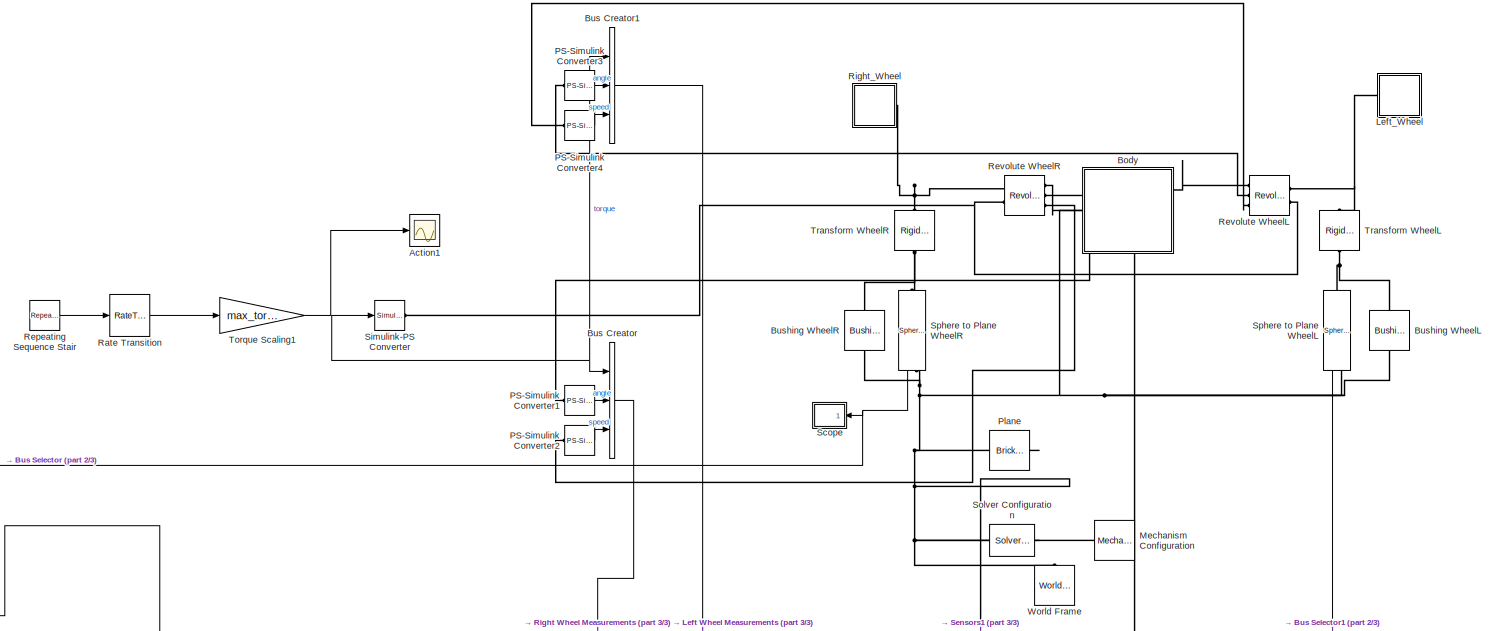
[diagram: root canvas - part 1/3, full width, middle band]
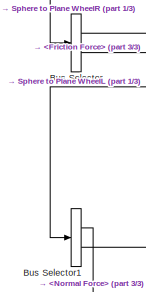
[diagram: root canvas - part 2/3, bottom left region]
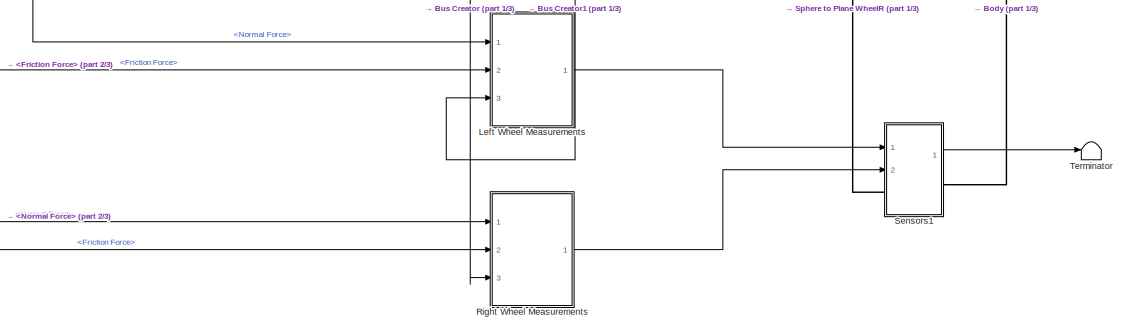
[diagram: root canvas - part 3/3, bottom center region]
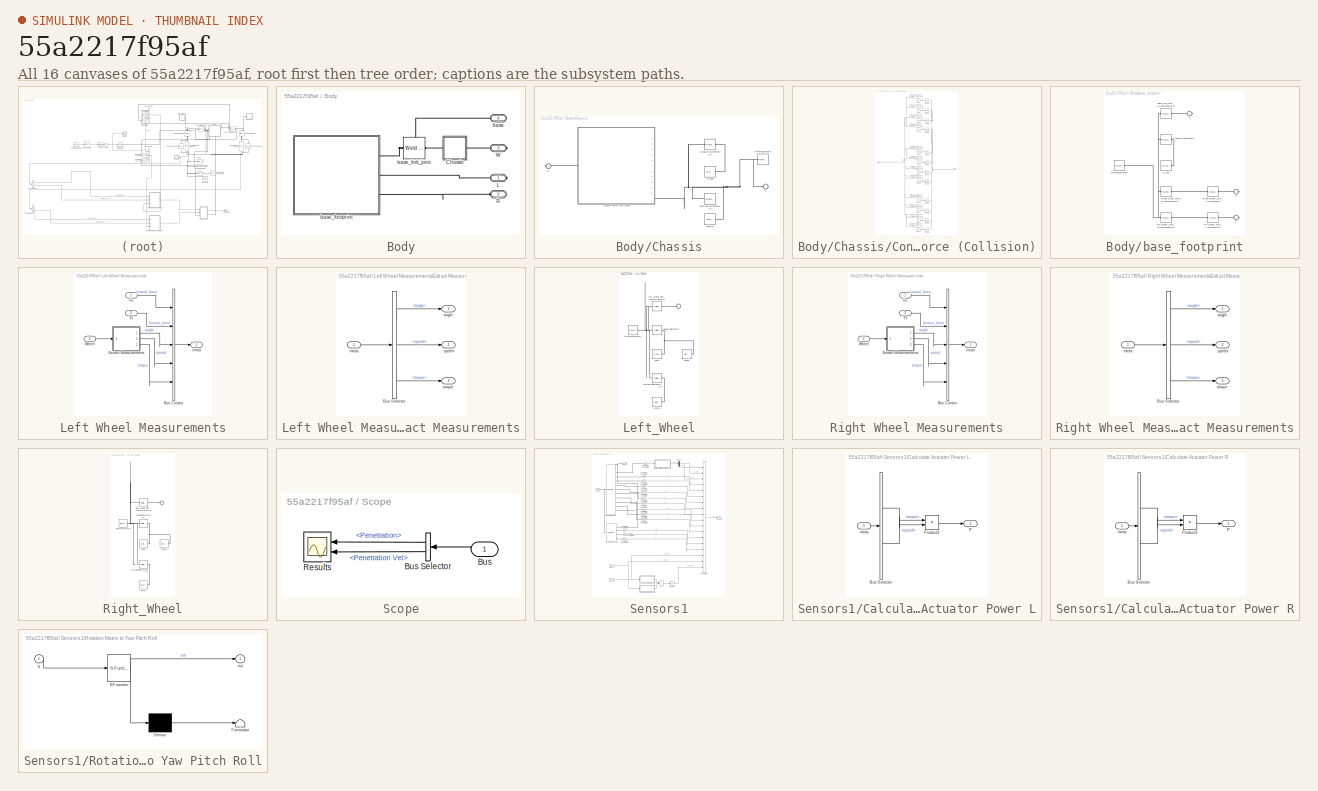
[diagram: thumbnail index - all 16 canvases of the model, root first then tree order]
MODEL slx_55a2217f95af
KIND model
CONFIG AbsTol = auto
CONFIG EnableMultiTasking = off
CONFIG FixedStep = auto
CONFIG MaxStep = auto
CONFIG MinStep = auto
CONFIG RelTol = 1e-3
CONFIG SampleTimeConstraint = Unconstrained
CONFIG Solver = VariableStepAuto
CONFIG SolverName = VariableStepAuto
CONFIG StartTime = 0.0
CONFIG StopTime = 25
BLOCK [Scope] Action1
  Floating = off
  NumInputPorts = 1
  Ports = [1]
  ScopeSpecificationString = Simulink.scopes.TimeScopeBlockCfg('CurrentConfiguration', extmgr.ConfigurationSet(extmgr.Configuration('Core','General UI',true),extmgr.Configuration('Core','Source UI',true),extmgr.Configuration('Sources','WiredSimulink',true,'DataLoggingVariableName','ScopeData1'),extmgr.Configuration('Visuals','Time Domain',true,'SerializedDisplays',{struct('MinYLimReal','-1.00000','MaxYLimReal','1.00000','YLab...<+1420ch>
BLOCK [SubSystem] Body
  PortSchema = {"entries":[{"content":{"sides":[{"content":{"connectorIds":["LConn1"]},"type":"ConnectorPlacement.EquallySpacedRectSide","uuid":"fa89fc61-4746-4874-a10e-0f1ff4eac7ad"},{"content":{"connectorIds":["RConn1"],"side":"RIGHT"},"type":"ConnectorPlacement.EquallySpacedRectSide","uuid":"79f4ddb8-3849-4594-b888-ec6795b585fc"},{"content":{"connectorIds":[],"side":"TOP"},"type":"ConnectorPlacement.EquallySp...<+408ch>
  Ports = [0, 0, 0, 0, 0, 1, 3]
  RequestExecContextInheritance = off
  Tag = CustomStyle
BLOCK [SubSystem] Body/Chassis
  Ports = [0, 0, 0, 0, 0, 1, 1]
  RequestExecContextInheritance = off
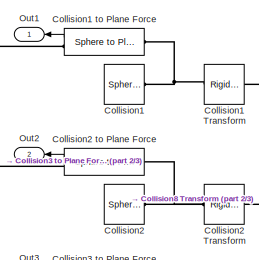
[diagram: Body/Chassis/Contact Force (Collision) - part 1/3, top center region]
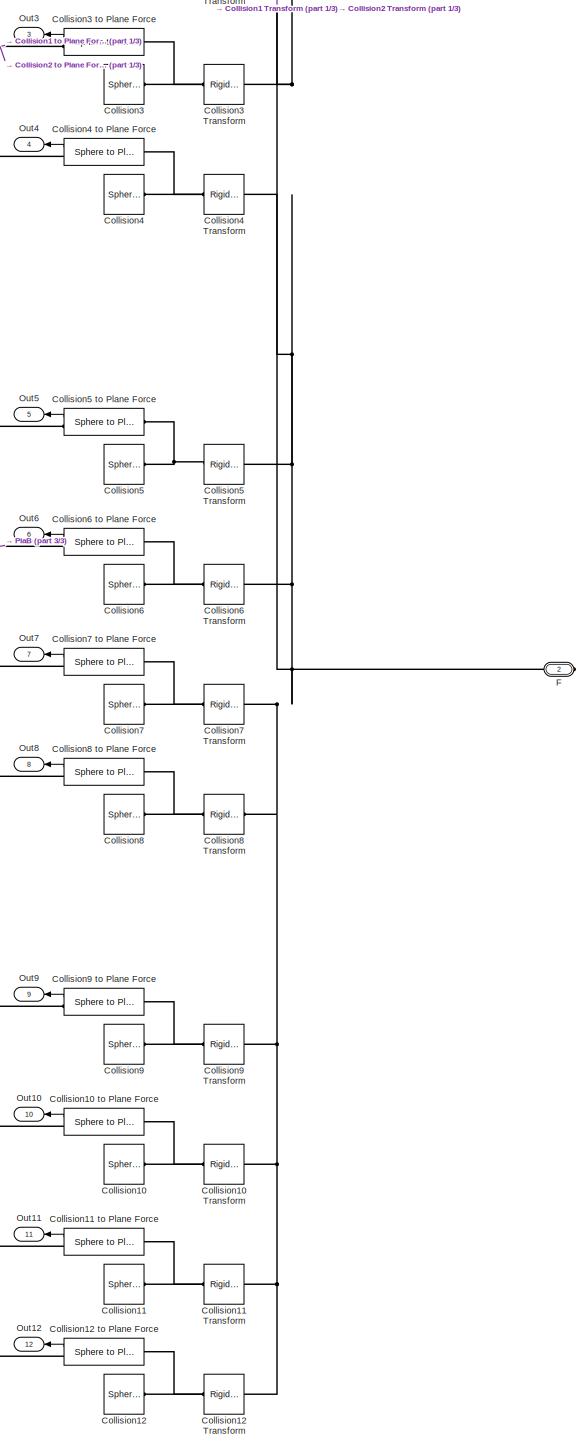
[diagram: Body/Chassis/Contact Force (Collision) - part 2/3, right side, full height]
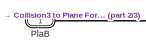
[diagram: Body/Chassis/Contact Force (Collision) - part 3/3, middle left region]
BLOCK [SubSystem] Body/Chassis/Contact Force (Collision)
  PortSchema = {"entries":[{"content":{"sides":[{"content":{"connectorIds":["LConn1"]},"type":"ConnectorPlacement.EquallySpacedRectSide","uuid":"dc074395-7c85-4e3e-bc66-f5b4ab427025"},{"content":{"connectorIds":["RConn1","Out1","Out2","Out3","Out4","Out5","Out6","Out7","Out8","Out9","Out10","Out11","Out12"],"side":"RIGHT"},"type":"ConnectorPlacement.EquallySpacedRectSide","uuid":"1bf12a85-ba2d-4880-ab9f-3fc8a17d...<+334ch>
  Ports = [0, 12, 0, 0, 0, 1, 1]
  RequestExecContextInheritance = off
BLOCK [Reference] Body/Chassis/Contact Force (Collision)/Collision1  REF=sm_lib/Body Elements/Spherical Solid
  NameLocation = left
  Ports = [0, 0, 0, 0, 0, 0, 1]
  SourceBlock = sm_lib/Body Elements/Spherical Solid
  SourceProductBaseCode = MS
  SourceType = Spherical Solid
BLOCK [Reference] Body/Chassis/Contact Force (Collision)/Collision1 Transform  REF=sm_lib/Frames and
Transforms/Rigid
Transform
  NameLocation = top
  Ports = [0, 0, 0, 0, 0, 1, 1]
  SourceBlock = sm_lib/Frames and\nTransforms/Rigid\nTransform
  SourceProductBaseCode = MS
  SourceType = Rigid\nTransform
BLOCK [Reference] Body/Chassis/Contact Force (Collision)/Collision1 to Plane Force  REF=Contact_Forces_Lib/3D/Sphere to Plane Force
  NameLocation = left
  Ports = [0, 1, 0, 0, 0, 1, 1]
  SourceBlock = Contact_Forces_Lib/3D/Sphere to Plane Force
  SourceProductName = Simscape Multibody Contact Forces Library
  SourceType = Sphere to Plane Force
BLOCK [Reference] Body/Chassis/Contact Force (Collision)/Collision10  REF=sm_lib/Body Elements/Spherical Solid
  NameLocation = left
  Ports = [0, 0, 0, 0, 0, 0, 1]
  SourceBlock = sm_lib/Body Elements/Spherical Solid
  SourceProductBaseCode = MS
  SourceType = Spherical Solid
BLOCK [Reference] Body/Chassis/Contact Force (Collision)/Collision10 Transform  REF=sm_lib/Frames and
Transforms/Rigid
Transform
  NameLocation = top
  Ports = [0, 0, 0, 0, 0, 1, 1]
  SourceBlock = sm_lib/Frames and\nTransforms/Rigid\nTransform
  SourceProductBaseCode = MS
  SourceType = Rigid\nTransform
BLOCK [Reference] Body/Chassis/Contact Force (Collision)/Collision10 to Plane Force  REF=Contact_Forces_Lib/3D/Sphere to Plane Force
  NameLocation = left
  Ports = [0, 1, 0, 0, 0, 1, 1]
  SourceBlock = Contact_Forces_Lib/3D/Sphere to Plane Force
  SourceProductName = Simscape Multibody Contact Forces Library
  SourceType = Sphere to Plane Force
BLOCK [Reference] Body/Chassis/Contact Force (Collision)/Collision11  REF=sm_lib/Body Elements/Spherical Solid
  NameLocation = left
  Ports = [0, 0, 0, 0, 0, 0, 1]
  SourceBlock = sm_lib/Body Elements/Spherical Solid
  SourceProductBaseCode = MS
  SourceType = Spherical Solid
BLOCK [Reference] Body/Chassis/Contact Force (Collision)/Collision11 Transform  REF=sm_lib/Frames and
Transforms/Rigid
Transform
  NameLocation = top
  Ports = [0, 0, 0, 0, 0, 1, 1]
  SourceBlock = sm_lib/Frames and\nTransforms/Rigid\nTransform
  SourceProductBaseCode = MS
  SourceType = Rigid\nTransform
BLOCK [Reference] Body/Chassis/Contact Force (Collision)/Collision11 to Plane Force  REF=Contact_Forces_Lib/3D/Sphere to Plane Force
  NameLocation = left
  Ports = [0, 1, 0, 0, 0, 1, 1]
  SourceBlock = Contact_Forces_Lib/3D/Sphere to Plane Force
  SourceProductName = Simscape Multibody Contact Forces Library
  SourceType = Sphere to Plane Force
BLOCK [Reference] Body/Chassis/Contact Force (Collision)/Collision12  REF=sm_lib/Body Elements/Spherical Solid
  NameLocation = left
  Ports = [0, 0, 0, 0, 0, 0, 1]
  SourceBlock = sm_lib/Body Elements/Spherical Solid
  SourceProductBaseCode = MS
  SourceType = Spherical Solid
BLOCK [Reference] Body/Chassis/Contact Force (Collision)/Collision12 Transform  REF=sm_lib/Frames and
Transforms/Rigid
Transform
  NameLocation = top
  Ports = [0, 0, 0, 0, 0, 1, 1]
  SourceBlock = sm_lib/Frames and\nTransforms/Rigid\nTransform
  SourceProductBaseCode = MS
  SourceType = Rigid\nTransform
BLOCK [Reference] Body/Chassis/Contact Force (Collision)/Collision12 to Plane Force  REF=Contact_Forces_Lib/3D/Sphere to Plane Force
  NameLocation = left
  Ports = [0, 1, 0, 0, 0, 1, 1]
  SourceBlock = Contact_Forces_Lib/3D/Sphere to Plane Force
  SourceProductName = Simscape Multibody Contact Forces Library
  SourceType = Sphere to Plane Force
BLOCK [Reference] Body/Chassis/Contact Force (Collision)/Collision2  REF=sm_lib/Body Elements/Spherical Solid
  NameLocation = left
  Ports = [0, 0, 0, 0, 0, 0, 1]
  SourceBlock = sm_lib/Body Elements/Spherical Solid
  SourceProductBaseCode = MS
  SourceType = Spherical Solid
BLOCK [Reference] Body/Chassis/Contact Force (Collision)/Collision2 Transform  REF=sm_lib/Frames and
Transforms/Rigid
Transform
  NameLocation = top
  Ports = [0, 0, 0, 0, 0, 1, 1]
  SourceBlock = sm_lib/Frames and\nTransforms/Rigid\nTransform
  SourceProductBaseCode = MS
  SourceType = Rigid\nTransform
BLOCK [Reference] Body/Chassis/Contact Force (Collision)/Collision2 to Plane Force  REF=Contact_Forces_Lib/3D/Sphere to Plane Force
  NameLocation = left
  Ports = [0, 1, 0, 0, 0, 1, 1]
  SourceBlock = Contact_Forces_Lib/3D/Sphere to Plane Force
  SourceProductName = Simscape Multibody Contact Forces Library
  SourceType = Sphere to Plane Force
BLOCK [Reference] Body/Chassis/Contact Force (Collision)/Collision3  REF=sm_lib/Body Elements/Spherical Solid
  NameLocation = left
  Ports = [0, 0, 0, 0, 0, 0, 1]
  SourceBlock = sm_lib/Body Elements/Spherical Solid
  SourceProductBaseCode = MS
  SourceType = Spherical Solid
BLOCK [Reference] Body/Chassis/Contact Force (Collision)/Collision3 Transform  REF=sm_lib/Frames and
Transforms/Rigid
Transform
  NameLocation = top
  Ports = [0, 0, 0, 0, 0, 1, 1]
  SourceBlock = sm_lib/Frames and\nTransforms/Rigid\nTransform
  SourceProductBaseCode = MS
  SourceType = Rigid\nTransform
BLOCK [Reference] Body/Chassis/Contact Force (Collision)/Collision3 to Plane Force  REF=Contact_Forces_Lib/3D/Sphere to Plane Force
  NameLocation = left
  Ports = [0, 1, 0, 0, 0, 1, 1]
  SourceBlock = Contact_Forces_Lib/3D/Sphere to Plane Force
  SourceProductName = Simscape Multibody Contact Forces Library
  SourceType = Sphere to Plane Force
BLOCK [Reference] Body/Chassis/Contact Force (Collision)/Collision4  REF=sm_lib/Body Elements/Spherical Solid
  NameLocation = left
  Ports = [0, 0, 0, 0, 0, 0, 1]
  SourceBlock = sm_lib/Body Elements/Spherical Solid
  SourceProductBaseCode = MS
  SourceType = Spherical Solid
BLOCK [Reference] Body/Chassis/Contact Force (Collision)/Collision4 Transform  REF=sm_lib/Frames and
Transforms/Rigid
Transform
  NameLocation = top
  Ports = [0, 0, 0, 0, 0, 1, 1]
  SourceBlock = sm_lib/Frames and\nTransforms/Rigid\nTransform
  SourceProductBaseCode = MS
  SourceType = Rigid\nTransform
BLOCK [Reference] Body/Chassis/Contact Force (Collision)/Collision4 to Plane Force  REF=Contact_Forces_Lib/3D/Sphere to Plane Force
  NameLocation = left
  Ports = [0, 1, 0, 0, 0, 1, 1]
  SourceBlock = Contact_Forces_Lib/3D/Sphere to Plane Force
  SourceProductName = Simscape Multibody Contact Forces Library
  SourceType = Sphere to Plane Force
BLOCK [Reference] Body/Chassis/Contact Force (Collision)/Collision5  REF=sm_lib/Body Elements/Spherical Solid
  NameLocation = left
  Ports = [0, 0, 0, 0, 0, 0, 1]
  SourceBlock = sm_lib/Body Elements/Spherical Solid
  SourceProductBaseCode = MS
  SourceType = Spherical Solid
BLOCK [Reference] Body/Chassis/Contact Force (Collision)/Collision5 Transform  REF=sm_lib/Frames and
Transforms/Rigid
Transform
  NameLocation = top
  Ports = [0, 0, 0, 0, 0, 1, 1]
  SourceBlock = sm_lib/Frames and\nTransforms/Rigid\nTransform
  SourceProductBaseCode = MS
  SourceType = Rigid\nTransform
BLOCK [Reference] Body/Chassis/Contact Force (Collision)/Collision5 to Plane Force  REF=Contact_Forces_Lib/3D/Sphere to Plane Force
  NameLocation = left
  Ports = [0, 1, 0, 0, 0, 1, 1]
  SourceBlock = Contact_Forces_Lib/3D/Sphere to Plane Force
  SourceProductName = Simscape Multibody Contact Forces Library
  SourceType = Sphere to Plane Force
BLOCK [Reference] Body/Chassis/Contact Force (Collision)/Collision6  REF=sm_lib/Body Elements/Spherical Solid
  NameLocation = left
  Ports = [0, 0, 0, 0, 0, 0, 1]
  SourceBlock = sm_lib/Body Elements/Spherical Solid
  SourceProductBaseCode = MS
  SourceType = Spherical Solid
BLOCK [Reference] Body/Chassis/Contact Force (Collision)/Collision6 Transform  REF=sm_lib/Frames and
Transforms/Rigid
Transform
  NameLocation = top
  Ports = [0, 0, 0, 0, 0, 1, 1]
  SourceBlock = sm_lib/Frames and\nTransforms/Rigid\nTransform
  SourceProductBaseCode = MS
  SourceType = Rigid\nTransform
BLOCK [Reference] Body/Chassis/Contact Force (Collision)/Collision6 to Plane Force  REF=Contact_Forces_Lib/3D/Sphere to Plane Force
  NameLocation = left
  Ports = [0, 1, 0, 0, 0, 1, 1]
  SourceBlock = Contact_Forces_Lib/3D/Sphere to Plane Force
  SourceProductName = Simscape Multibody Contact Forces Library
  SourceType = Sphere to Plane Force
BLOCK [Reference] Body/Chassis/Contact Force (Collision)/Collision7  REF=sm_lib/Body Elements/Spherical Solid
  NameLocation = left
  Ports = [0, 0, 0, 0, 0, 0, 1]
  SourceBlock = sm_lib/Body Elements/Spherical Solid
  SourceProductBaseCode = MS
  SourceType = Spherical Solid
BLOCK [Reference] Body/Chassis/Contact Force (Collision)/Collision7 Transform  REF=sm_lib/Frames and
Transforms/Rigid
Transform
  NameLocation = top
  Ports = [0, 0, 0, 0, 0, 1, 1]
  SourceBlock = sm_lib/Frames and\nTransforms/Rigid\nTransform
  SourceProductBaseCode = MS
  SourceType = Rigid\nTransform
BLOCK [Reference] Body/Chassis/Contact Force (Collision)/Collision7 to Plane Force  REF=Contact_Forces_Lib/3D/Sphere to Plane Force
  NameLocation = left
  Ports = [0, 1, 0, 0, 0, 1, 1]
  SourceBlock = Contact_Forces_Lib/3D/Sphere to Plane Force
  SourceProductName = Simscape Multibody Contact Forces Library
  SourceType = Sphere to Plane Force
BLOCK [Reference] Body/Chassis/Contact Force (Collision)/Collision8  REF=sm_lib/Body Elements/Spherical Solid
  NameLocation = left
  Ports = [0, 0, 0, 0, 0, 0, 1]
  SourceBlock = sm_lib/Body Elements/Spherical Solid
  SourceProductBaseCode = MS
  SourceType = Spherical Solid
BLOCK [Reference] Body/Chassis/Contact Force (Collision)/Collision8 Transform  REF=sm_lib/Frames and
Transforms/Rigid
Transform
  NameLocation = top
  Ports = [0, 0, 0, 0, 0, 1, 1]
  SourceBlock = sm_lib/Frames and\nTransforms/Rigid\nTransform
  SourceProductBaseCode = MS
  SourceType = Rigid\nTransform
BLOCK [Reference] Body/Chassis/Contact Force (Collision)/Collision8 to Plane Force  REF=Contact_Forces_Lib/3D/Sphere to Plane Force
  NameLocation = left
  Ports = [0, 1, 0, 0, 0, 1, 1]
  SourceBlock = Contact_Forces_Lib/3D/Sphere to Plane Force
  SourceProductName = Simscape Multibody Contact Forces Library
  SourceType = Sphere to Plane Force
BLOCK [Reference] Body/Chassis/Contact Force (Collision)/Collision9  REF=sm_lib/Body Elements/Spherical Solid
  NameLocation = left
  Ports = [0, 0, 0, 0, 0, 0, 1]
  SourceBlock = sm_lib/Body Elements/Spherical Solid
  SourceProductBaseCode = MS
  SourceType = Spherical Solid
BLOCK [Reference] Body/Chassis/Contact Force (Collision)/Collision9 Transform  REF=sm_lib/Frames and
Transforms/Rigid
Transform
  NameLocation = top
  Ports = [0, 0, 0, 0, 0, 1, 1]
  SourceBlock = sm_lib/Frames and\nTransforms/Rigid\nTransform
  SourceProductBaseCode = MS
  SourceType = Rigid\nTransform
BLOCK [Reference] Body/Chassis/Contact Force (Collision)/Collision9 to Plane Force  REF=Contact_Forces_Lib/3D/Sphere to Plane Force
  NameLocation = left
  Ports = [0, 1, 0, 0, 0, 1, 1]
  SourceBlock = Contact_Forces_Lib/3D/Sphere to Plane Force
  SourceProductName = Simscape Multibody Contact Forces Library
  SourceType = Sphere to Plane Force
BLOCK [PMIOPort] Body/Chassis/Contact Force (Collision)/F
  NameLocation = top
  Port = 2
  Side = Right
BLOCK [Outport] Body/Chassis/Contact Force (Collision)/Out1
BLOCK [Outport] Body/Chassis/Contact Force (Collision)/Out10
  Port = 10
BLOCK [Outport] Body/Chassis/Contact Force (Collision)/Out11
  Port = 11
BLOCK [Outport] Body/Chassis/Contact Force (Collision)/Out12
  Port = 12
BLOCK [Outport] Body/Chassis/Contact Force (Collision)/Out2
  Port = 2
BLOCK [Outport] Body/Chassis/Contact Force (Collision)/Out3
  Port = 3
BLOCK [Outport] Body/Chassis/Contact Force (Collision)/Out4
  Port = 4
BLOCK [Outport] Body/Chassis/Contact Force (Collision)/Out5
  Port = 5
BLOCK [Outport] Body/Chassis/Contact Force (Collision)/Out6
  Port = 6
BLOCK [Outport] Body/Chassis/Contact Force (Collision)/Out7
  Port = 7
BLOCK [Outport] Body/Chassis/Contact Force (Collision)/Out8
  Port = 8
BLOCK [Outport] Body/Chassis/Contact Force (Collision)/Out9
  Port = 9
BLOCK [PMIOPort] Body/Chassis/Contact Force (Collision)/PlaB
  Side = Left
BLOCK [PMIOPort] Body/Chassis/F
  NameLocation = top
  Side = Left
BLOCK [Reference] Body/Chassis/Inertia  REF=sm_lib/Body Elements/Inertia
  Ports = [0, 0, 0, 0, 0, 0, 1]
  SourceBlock = sm_lib/Body Elements/Inertia
  SourceProductBaseCode = MS
  SourceType = Inertia
BLOCK [Reference] Body/Chassis/InertiaOriginTransform  REF=sm_lib/Frames and
Transforms/Rigid
Transform
  Commented = on
  Ports = [0, 0, 0, 0, 0, 1, 1]
  SourceBlock = sm_lib/Frames and\nTransforms/Rigid\nTransform
  SourceProductBaseCode = MS
  SourceType = Rigid\nTransform
BLOCK [Reference] Body/Chassis/ReferenceFrame  REF=sm_lib/Frames and
Transforms/Reference
Frame
  NameLocation = top
  Ports = [0, 0, 0, 0, 0, 0, 1]
  SourceBlock = sm_lib/Frames and\nTransforms/Reference\nFrame
  SourceProductBaseCode = MS
  SourceType = Reference\nFrame
BLOCK [Reference] Body/Chassis/Visual  REF=sm_lib/Body Elements/File Solid
  Ports = [0, 0, 0, 0, 0, 0, 1]
  SourceBlock = sm_lib/Body Elements/File Solid
  SourceProductBaseCode = MS
  SourceType = File Solid
BLOCK [Reference] Body/Chassis/VisualOriginTransform  REF=sm_lib/Frames and
Transforms/Rigid
Transform
  Ports = [0, 0, 0, 0, 0, 1, 1]
  SourceBlock = sm_lib/Frames and\nTransforms/Rigid\nTransform
  SourceProductBaseCode = MS
  SourceType = Rigid\nTransform
BLOCK [PMIOPort] Body/Chassis/W
  Port = 2
  Side = Right
BLOCK [PMIOPort] Body/L
  NameLocation = top
  Side = Right
BLOCK [PMIOPort] Body/R
  Port = 2
  Side = Left
BLOCK [PMIOPort] Body/W
  Port = 3
  Side = Right
BLOCK [PMIOPort] Body/base
  Port = 4
  Side = Right
BLOCK [SubSystem] Body/base_footprint
  Ports = [0, 0, 0, 0, 0, 0, 3]
  RequestExecContextInheritance = off
BLOCK [PMIOPort] Body/base_footprint/C
  Side = Right
BLOCK [PMIOPort] Body/base_footprint/L
  Port = 3
  Side = Right
BLOCK [Reference] Body/base_footprint/Left_wheel_Joint_AxisTransform  REF=sm_lib/Frames and
Transforms/Rigid
Transform
  Ports = [0, 0, 0, 0, 0, 1, 1]
  SourceBlock = sm_lib/Frames and\nTransforms/Rigid\nTransform
  SourceProductBaseCode = MS
  SourceType = Rigid\nTransform
BLOCK [Reference] Body/base_footprint/Left_wheel_Joint_OriginTransform  REF=sm_lib/Frames and
Transforms/Rigid
Transform
  Ports = [0, 0, 0, 0, 0, 1, 1]
  SourceBlock = sm_lib/Frames and\nTransforms/Rigid\nTransform
  SourceProductBaseCode = MS
  SourceType = Rigid\nTransform
BLOCK [PMIOPort] Body/base_footprint/R
  Port = 2
  Side = Right
BLOCK [Reference] Body/base_footprint/ReferenceFrame  REF=sm_lib/Frames and
Transforms/Reference
Frame
  Ports = [0, 0, 0, 0, 0, 0, 1]
  SourceBlock = sm_lib/Frames and\nTransforms/Reference\nFrame
  SourceProductBaseCode = MS
  SourceType = Reference\nFrame
BLOCK [Reference] Body/base_footprint/Right_wheel_Joint_AxisTransform  REF=sm_lib/Frames and
Transforms/Rigid
Transform
  Ports = [0, 0, 0, 0, 0, 1, 1]
  SourceBlock = sm_lib/Frames and\nTransforms/Rigid\nTransform
  SourceProductBaseCode = MS
  SourceType = Rigid\nTransform
BLOCK [Reference] Body/base_footprint/Right_wheel_Joint_OriginTransform  REF=sm_lib/Frames and
Transforms/Rigid
Transform
  Ports = [0, 0, 0, 0, 0, 1, 1]
  SourceBlock = sm_lib/Frames and\nTransforms/Rigid\nTransform
  SourceProductBaseCode = MS
  SourceType = Rigid\nTransform
BLOCK [Reference] Body/base_footprint/Visual  REF=sm_lib/Body Elements/Brick Solid
  Ports = [0, 0, 0, 0, 0, 0, 1]
  SourceBlock = sm_lib/Body Elements/Brick Solid
  SourceProductBaseCode = MS
  SourceType = Brick Solid
BLOCK [Reference] Body/base_footprint/VisualOriginTransform  REF=sm_lib/Frames and
Transforms/Rigid
Transform
  Ports = [0, 0, 0, 0, 0, 1, 1]
  SourceBlock = sm_lib/Frames and\nTransforms/Rigid\nTransform
  SourceProductBaseCode = MS
  SourceType = Rigid\nTransform
BLOCK [Reference] Body/base_footprint/base_link_joint_OriginTransform  REF=sm_lib/Frames and
Transforms/Rigid
Transform
  Ports = [0, 0, 0, 0, 0, 1, 1]
  SourceBlock = sm_lib/Frames and\nTransforms/Rigid\nTransform
  SourceProductBaseCode = MS
  SourceType = Rigid\nTransform
BLOCK [Reference] Body/base_link_joint  REF=sm_lib/Joints/Weld Joint
  Ports = [0, 0, 0, 0, 0, 1, 1]
  SourceBlock = sm_lib/Joints/Weld Joint
  SourceProductBaseCode = MS
  SourceType = Weld Joint
BLOCK [BusCreator] Bus Creator
  DisplayOption = bar
  InheritFromInputs = on
  Inputs = 3
  Ports = [3, 1]
BLOCK [BusCreator] Bus Creator1
  DisplayOption = bar
  InheritFromInputs = on
  Inputs = 3
  Ports = [3, 1]
BLOCK [BusSelector] Bus Selector
  OutputSignals = Normal Force,Friction Force
  Ports = [1, 2]
BLOCK [BusSelector] Bus Selector1
  OutputSignals = Normal Force,Friction Force
  Ports = [1, 2]
BLOCK [Reference] Bushing WheelL  REF=sm_lib/Joints/Bushing Joint
  NameLocation = right
  Ports = [0, 0, 0, 0, 0, 1, 1]
  SourceBlock = sm_lib/Joints/Bushing Joint
  SourceProductBaseCode = MS
  SourceType = Bushing Joint
BLOCK [Reference] Bushing WheelR  REF=sm_lib/Joints/Bushing Joint
  NameLocation = left
  Ports = [0, 0, 0, 0, 0, 1, 1]
  SourceBlock = sm_lib/Joints/Bushing Joint
  SourceProductBaseCode = MS
  SourceType = Bushing Joint
BLOCK [SubSystem] Left Wheel Measurements
  AncestorBlock = walkingRobotUtils/Package \nMeasurements 2D
  Ports = [3, 1]
  RequestExecContextInheritance = off
BLOCK [BusCreator] Left Wheel Measurements/Bus Creator
  DisplayOption = bar
  InheritFromInputs = on
  Inputs = 5
  Ports = [5, 1]
BLOCK [SubSystem] Left Wheel Measurements/Extract Measurements
  Ports = [1, 3]
  RequestExecContextInheritance = off
BLOCK [BusSelector] Left Wheel Measurements/Extract Measurements/Bus Selector
  OutputSignals = angle,speed,torque
  Ports = [1, 3]
BLOCK [Outport] Left Wheel Measurements/Extract Measurements/angle
  VectorParamsAs1DForOutWhenUnconnected = off
BLOCK [Inport] Left Wheel Measurements/Extract Measurements/meas
BLOCK [Outport] Left Wheel Measurements/Extract Measurements/speed
  Port = 2
  VectorParamsAs1DForOutWhenUnconnected = off
BLOCK [Outport] Left Wheel Measurements/Extract Measurements/torque
  Port = 3
  VectorParamsAs1DForOutWhenUnconnected = off
BLOCK [Inport] Left Wheel Measurements/Ff
  Port = 2
BLOCK [Inport] Left Wheel Measurements/Fn
BLOCK [Inport] Left Wheel Measurements/Wheel
  Port = 3
BLOCK [Outport] Left Wheel Measurements/meas
  VectorParamsAs1DForOutWhenUnconnected = off
BLOCK [SubSystem] Left_Wheel
  Ports = [0, 0, 0, 0, 0, 1]
  RequestExecContextInheritance = off
BLOCK [PMIOPort] Left_Wheel/F
  Side = Left
BLOCK [Reference] Left_Wheel/Inertia  REF=sm_lib/Body Elements/Inertia
  Ports = [0, 0, 0, 0, 0, 0, 1]
  SourceBlock = sm_lib/Body Elements/Inertia
  SourceProductBaseCode = MS
  SourceType = Inertia
BLOCK [Reference] Left_Wheel/InertiaOriginTransform  REF=sm_lib/Frames and
Transforms/Rigid
Transform
  Ports = [0, 0, 0, 0, 0, 1, 1]
  SourceBlock = sm_lib/Frames and\nTransforms/Rigid\nTransform
  SourceProductBaseCode = MS
  SourceType = Rigid\nTransform
BLOCK [Reference] Left_Wheel/Left_wheel_Joint_AxisInvTransform  REF=sm_lib/Frames and
Transforms/Rigid
Transform
  Ports = [0, 0, 0, 0, 0, 1, 1]
  SourceBlock = sm_lib/Frames and\nTransforms/Rigid\nTransform
  SourceProductBaseCode = MS
  SourceType = Rigid\nTransform
BLOCK [Reference] Left_Wheel/ReferenceFrame  REF=sm_lib/Frames and
Transforms/Reference
Frame
  Ports = [0, 0, 0, 0, 0, 0, 1]
  SourceBlock = sm_lib/Frames and\nTransforms/Reference\nFrame
  SourceProductBaseCode = MS
  SourceType = Reference\nFrame
BLOCK [Reference] Left_Wheel/Visual  REF=sm_lib/Body Elements/Cylindrical Solid
  Ports = [0, 0, 0, 0, 0, 0, 1]
  SourceBlock = sm_lib/Body Elements/Cylindrical Solid
  SourceProductBaseCode = MS
  SourceType = Cylindrical Solid
BLOCK [Reference] Left_Wheel/Visual1  REF=sm_lib/Body Elements/File Solid
  Commented = on
  Ports = [0, 0, 0, 0, 0, 0, 1]
  SourceBlock = sm_lib/Body Elements/File Solid
  SourceProductBaseCode = MS
  SourceType = File Solid
BLOCK [Reference] Left_Wheel/VisualOriginTransform  REF=sm_lib/Frames and
Transforms/Rigid
Transform
  Ports = [0, 0, 0, 0, 0, 1, 1]
  SourceBlock = sm_lib/Frames and\nTransforms/Rigid\nTransform
  SourceProductBaseCode = MS
  SourceType = Rigid\nTransform
BLOCK [Reference] Mechanism Configuration  REF=sm_lib/Utilities/Mechanism
Configuration
  Ports = [0, 0, 0, 0, 0, 0, 1]
  SourceBlock = sm_lib/Utilities/Mechanism\nConfiguration
  SourceProductBaseCode = MS
  SourceType = Mechanism\nConfiguration
BLOCK [Reference] PS-Simulink Converter1  REF=nesl_utility/PS-Simulink
Converter
  Ports = [0, 1, 0, 0, 0, 1]
  SourceBlock = nesl_utility/PS-Simulink\nConverter
  SourceProductBaseCode = MT,SS
  SourceType = PS-Simulink\nConverter
BLOCK [Reference] PS-Simulink Converter2  REF=nesl_utility/PS-Simulink
Converter
  Ports = [0, 1, 0, 0, 0, 1]
  SourceBlock = nesl_utility/PS-Simulink\nConverter
  SourceProductBaseCode = MT,SS
  SourceType = PS-Simulink\nConverter
BLOCK [Reference] PS-Simulink Converter3  REF=nesl_utility/PS-Simulink
Converter
  Ports = [0, 1, 0, 0, 0, 1]
  SourceBlock = nesl_utility/PS-Simulink\nConverter
  SourceProductBaseCode = MT,SS
  SourceType = PS-Simulink\nConverter
BLOCK [Reference] PS-Simulink Converter4  REF=nesl_utility/PS-Simulink
Converter
  Ports = [0, 1, 0, 0, 0, 1]
  SourceBlock = nesl_utility/PS-Simulink\nConverter
  SourceProductBaseCode = MT,SS
  SourceType = PS-Simulink\nConverter
BLOCK [Reference] Plane  REF=sm_lib/Body Elements/Brick Solid
  Ports = [0, 0, 0, 0, 0, 0, 1]
  SourceBlock = sm_lib/Body Elements/Brick Solid
  SourceProductBaseCode = MS
  SourceType = Brick Solid
BLOCK [RateTransition] Rate Transition
BLOCK [Reference] Repeating Sequence Stair  REF=simulink/Sources/Repeating
Sequence
Stair
  Ports = [0, 1]
  SourceBlock = simulink/Sources/Repeating\nSequence\nStair
  SourceProductBaseCode = SL
  SourceType = Repeating Sequence Stair
BLOCK [Reference] Revolute WheelL  REF=sm_lib/Joints/Revolute Joint
  NameLocation = top
  Ports = [0, 0, 0, 0, 0, 2, 3]
  SourceBlock = sm_lib/Joints/Revolute Joint
  SourceProductBaseCode = MS
  SourceType = Revolute Joint
BLOCK [Reference] Revolute WheelR  REF=sm_lib/Joints/Revolute Joint
  NameLocation = top
  Ports = [0, 0, 0, 0, 0, 2, 3]
  SourceBlock = sm_lib/Joints/Revolute Joint
  SourceProductBaseCode = MS
  SourceType = Revolute Joint
BLOCK [SubSystem] Right Wheel Measurements
  AncestorBlock = walkingRobotUtils/Package \nMeasurements 2D
  Ports = [3, 1]
  RequestExecContextInheritance = off
BLOCK [BusCreator] Right Wheel Measurements/Bus Creator
  DisplayOption = bar
  InheritFromInputs = on
  Inputs = 5
  Ports = [5, 1]
BLOCK [SubSystem] Right Wheel Measurements/Extract Measurements
  Ports = [1, 3]
  RequestExecContextInheritance = off
BLOCK [BusSelector] Right Wheel Measurements/Extract Measurements/Bus Selector
  OutputSignals = angle,speed,torque
  Ports = [1, 3]
BLOCK [Outport] Right Wheel Measurements/Extract Measurements/angle
  VectorParamsAs1DForOutWhenUnconnected = off
BLOCK [Inport] Right Wheel Measurements/Extract Measurements/meas
BLOCK [Outport] Right Wheel Measurements/Extract Measurements/speed
  Port = 2
  VectorParamsAs1DForOutWhenUnconnected = off
BLOCK [Outport] Right Wheel Measurements/Extract Measurements/torque
  Port = 3
  VectorParamsAs1DForOutWhenUnconnected = off
BLOCK [Inport] Right Wheel Measurements/Ff
  Port = 2
BLOCK [Inport] Right Wheel Measurements/Fn
BLOCK [Inport] Right Wheel Measurements/Wheel
  Port = 3
BLOCK [Outport] Right Wheel Measurements/meas
  VectorParamsAs1DForOutWhenUnconnected = off
BLOCK [SubSystem] Right_Wheel
  NameLocation = top
  Ports = [0, 0, 0, 0, 0, 1]
  RequestExecContextInheritance = off
BLOCK [PMIOPort] Right_Wheel/F
  Side = Left
BLOCK [Reference] Right_Wheel/Inertia  REF=sm_lib/Body Elements/Inertia
  Ports = [0, 0, 0, 0, 0, 0, 1]
  SourceBlock = sm_lib/Body Elements/Inertia
  SourceProductBaseCode = MS
  SourceType = Inertia
BLOCK [Reference] Right_Wheel/InertiaOriginTransform  REF=sm_lib/Frames and
Transforms/Rigid
Transform
  Ports = [0, 0, 0, 0, 0, 1, 1]
  SourceBlock = sm_lib/Frames and\nTransforms/Rigid\nTransform
  SourceProductBaseCode = MS
  SourceType = Rigid\nTransform
BLOCK [Reference] Right_Wheel/ReferenceFrame  REF=sm_lib/Frames and
Transforms/Reference
Frame
  Ports = [0, 0, 0, 0, 0, 0, 1]
  SourceBlock = sm_lib/Frames and\nTransforms/Reference\nFrame
  SourceProductBaseCode = MS
  SourceType = Reference\nFrame
BLOCK [Reference] Right_Wheel/Right_wheel_Joint_AxisInvTransform  REF=sm_lib/Frames and
Transforms/Rigid
Transform
  Ports = [0, 0, 0, 0, 0, 1, 1]
  SourceBlock = sm_lib/Frames and\nTransforms/Rigid\nTransform
  SourceProductBaseCode = MS
  SourceType = Rigid\nTransform
BLOCK [Reference] Right_Wheel/Visual  REF=sm_lib/Body Elements/Cylindrical Solid
  Ports = [0, 0, 0, 0, 0, 0, 1]
  SourceBlock = sm_lib/Body Elements/Cylindrical Solid
  SourceProductBaseCode = MS
  SourceType = Cylindrical Solid
BLOCK [Reference] Right_Wheel/Visual1  REF=sm_lib/Body Elements/File Solid
  Commented = on
  Ports = [0, 0, 0, 0, 0, 0, 1]
  SourceBlock = sm_lib/Body Elements/File Solid
  SourceProductBaseCode = MS
  SourceType = File Solid
BLOCK [Reference] Right_Wheel/VisualOriginTransform  REF=sm_lib/Frames and
Transforms/Rigid
Transform
  Ports = [0, 0, 0, 0, 0, 1, 1]
  SourceBlock = sm_lib/Frames and\nTransforms/Rigid\nTransform
  SourceProductBaseCode = MS
  SourceType = Rigid\nTransform
BLOCK [SubSystem] Scope
  Ports = [1]
  RequestExecContextInheritance = off
BLOCK [Inport] Scope/Bus
BLOCK [BusSelector] Scope/Bus Selector
  NameLocation = top
  OutputSignals = Penetration,Penetration Vel
  Ports = [1, 2]
BLOCK [Scope] Scope/Results
  Floating = off
  NameLocation = top
  NumInputPorts = 2
  Ports = [2]
  ScopeSpecificationString = Simulink.scopes.TimeScopeBlockCfg('CurrentConfiguration', extmgr.ConfigurationSet(extmgr.Configuration('Core','General UI',true,'FigureColor',[0.501960784313725 0.501960784313725 0.501960784313725]),extmgr.Configuration('Core','Source UI',true),extmgr.Configuration('Sources','WiredSimulink',true,'DataLoggingVariableName','ScopeData1','DataLoggingSaveFormat','StructureWithTime','DataLoggingDecimati...<+3833ch>
  Tag = PublishScope
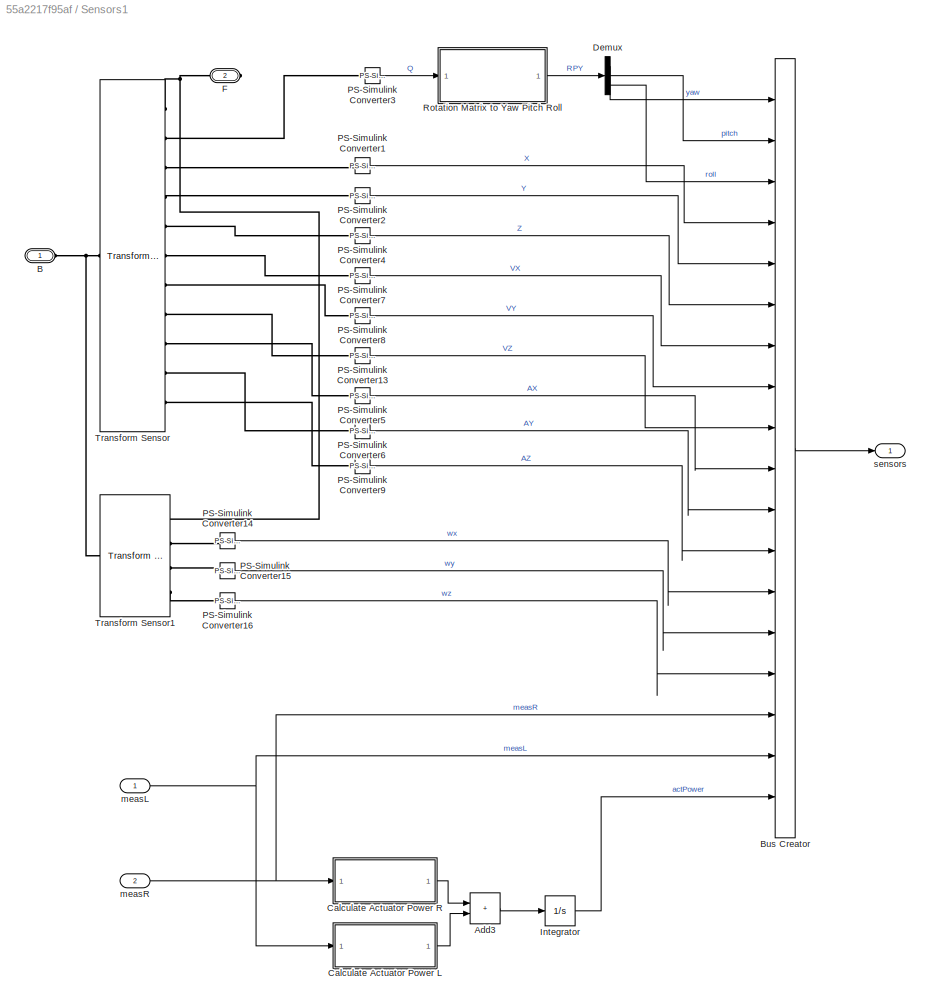
BLOCK [SubSystem] Sensors1
  Ports = [2, 1, 0, 0, 0, 1, 1]
  RequestExecContextInheritance = off
BLOCK [Sum] Sensors1/Add3
  IconShape = rectangular
  Ports = [2, 1]
BLOCK [PMIOPort] Sensors1/B
  Side = Left
BLOCK [BusCreator] Sensors1/Bus Creator
  DisplayOption = bar
  InheritFromInputs = on
  Inputs = 18
  Ports = [18, 1]
BLOCK [SubSystem] Sensors1/Calculate Actuator Power L
  Ports = [1, 1]
  RequestExecContextInheritance = off
BLOCK [BusSelector] Sensors1/Calculate Actuator Power L/Bus Selector
  OutputSignals = torque,speed
  Ports = [1, 2]
BLOCK [Outport] Sensors1/Calculate Actuator Power L/P
  VectorParamsAs1DForOutWhenUnconnected = off
BLOCK [Product] Sensors1/Calculate Actuator Power L/Product3
  Ports = [2, 1]
BLOCK [Inport] Sensors1/Calculate Actuator Power L/meas
BLOCK [SubSystem] Sensors1/Calculate Actuator Power R
  Ports = [1, 1]
  RequestExecContextInheritance = off
BLOCK [BusSelector] Sensors1/Calculate Actuator Power R/Bus Selector
  OutputSignals = torque,speed
  Ports = [1, 2]
BLOCK [Outport] Sensors1/Calculate Actuator Power R/P
  VectorParamsAs1DForOutWhenUnconnected = off
BLOCK [Product] Sensors1/Calculate Actuator Power R/Product3
  Ports = [2, 1]
BLOCK [Inport] Sensors1/Calculate Actuator Power R/meas
BLOCK [Demux] Sensors1/Demux
  Outputs = 3
  Ports = [1, 3]
BLOCK [PMIOPort] Sensors1/F
  Port = 2
  Side = Right
BLOCK [Integrator] Sensors1/Integrator
  Ports = [1, 1]
BLOCK [Reference] Sensors1/PS-Simulink Converter1  REF=nesl_utility/PS-Simulink
Converter
  Ports = [0, 1, 0, 0, 0, 1]
  SourceBlock = nesl_utility/PS-Simulink\nConverter
  SourceProductBaseCode = MT,SS
  SourceType = PS-Simulink\nConverter
BLOCK [Reference] Sensors1/PS-Simulink Converter13  REF=nesl_utility/PS-Simulink
Converter
  Ports = [0, 1, 0, 0, 0, 1]
  SourceBlock = nesl_utility/PS-Simulink\nConverter
  SourceProductBaseCode = MT,SS
  SourceType = PS-Simulink\nConverter
BLOCK [Reference] Sensors1/PS-Simulink Converter14  REF=nesl_utility/PS-Simulink
Converter
  Ports = [0, 1, 0, 0, 0, 1]
  SourceBlock = nesl_utility/PS-Simulink\nConverter
  SourceProductBaseCode = MT,SS
  SourceType = PS-Simulink\nConverter
BLOCK [Reference] Sensors1/PS-Simulink Converter15  REF=nesl_utility/PS-Simulink
Converter
  Ports = [0, 1, 0, 0, 0, 1]
  SourceBlock = nesl_utility/PS-Simulink\nConverter
  SourceProductBaseCode = MT,SS
  SourceType = PS-Simulink\nConverter
BLOCK [Reference] Sensors1/PS-Simulink Converter16  REF=nesl_utility/PS-Simulink
Converter
  Ports = [0, 1, 0, 0, 0, 1]
  SourceBlock = nesl_utility/PS-Simulink\nConverter
  SourceProductBaseCode = MT,SS
  SourceType = PS-Simulink\nConverter
BLOCK [Reference] Sensors1/PS-Simulink Converter2  REF=nesl_utility/PS-Simulink
Converter
  Ports = [0, 1, 0, 0, 0, 1]
  SourceBlock = nesl_utility/PS-Simulink\nConverter
  SourceProductBaseCode = MT,SS
  SourceType = PS-Simulink\nConverter
BLOCK [Reference] Sensors1/PS-Simulink Converter3  REF=nesl_utility/PS-Simulink
Converter
  Ports = [0, 1, 0, 0, 0, 1]
  SourceBlock = nesl_utility/PS-Simulink\nConverter
  SourceProductBaseCode = MT,SS
  SourceType = PS-Simulink\nConverter
BLOCK [Reference] Sensors1/PS-Simulink Converter4  REF=nesl_utility/PS-Simulink
Converter
  Ports = [0, 1, 0, 0, 0, 1]
  SourceBlock = nesl_utility/PS-Simulink\nConverter
  SourceProductBaseCode = MT,SS
  SourceType = PS-Simulink\nConverter
BLOCK [Reference] Sensors1/PS-Simulink Converter5  REF=nesl_utility/PS-Simulink
Converter
  Ports = [0, 1, 0, 0, 0, 1]
  SourceBlock = nesl_utility/PS-Simulink\nConverter
  SourceProductBaseCode = MT,SS
  SourceType = PS-Simulink\nConverter
BLOCK [Reference] Sensors1/PS-Simulink Converter6  REF=nesl_utility/PS-Simulink
Converter
  Ports = [0, 1, 0, 0, 0, 1]
  SourceBlock = nesl_utility/PS-Simulink\nConverter
  SourceProductBaseCode = MT,SS
  SourceType = PS-Simulink\nConverter
BLOCK [Reference] Sensors1/PS-Simulink Converter7  REF=nesl_utility/PS-Simulink
Converter
  Ports = [0, 1, 0, 0, 0, 1]
  SourceBlock = nesl_utility/PS-Simulink\nConverter
  SourceProductBaseCode = MT,SS
  SourceType = PS-Simulink\nConverter
BLOCK [Reference] Sensors1/PS-Simulink Converter8  REF=nesl_utility/PS-Simulink
Converter
  Ports = [0, 1, 0, 0, 0, 1]
  SourceBlock = nesl_utility/PS-Simulink\nConverter
  SourceProductBaseCode = MT,SS
  SourceType = PS-Simulink\nConverter
BLOCK [Reference] Sensors1/PS-Simulink Converter9  REF=nesl_utility/PS-Simulink
Converter
  Ports = [0, 1, 0, 0, 0, 1]
  SourceBlock = nesl_utility/PS-Simulink\nConverter
  SourceProductBaseCode = MT,SS
  SourceType = PS-Simulink\nConverter
BLOCK [SubSystem] Sensors1/Rotation Matrix to Yaw Pitch Roll
  ErrorFcn = Stateflow.Translate.translate
  PermitHierarchicalResolution = ExplicitOnly
  Ports = [1, 1]
  RequestExecContextInheritance = off
  SFBlockType = MATLAB Function
  TreatAsAtomicUnit = on
BLOCK [Demux] Sensors1/Rotation Matrix to Yaw Pitch Roll/ Demux 
  Outputs = 1
  Ports = [1, 1]
BLOCK [S-Function] Sensors1/Rotation Matrix to Yaw Pitch Roll/ SFunction 
  EnableBusSupport = on
  FunctionName = sf_sfun
  PortCounts = [1 2]
  Ports = [1, 2]
  SFcnIsStateOwnerBlock = off
  SFunctionDeploymentMode = off
  Tag = Stateflow S-Function 2
BLOCK [Terminator] Sensors1/Rotation Matrix to Yaw Pitch Roll/ Terminator 
BLOCK [Outport] Sensors1/Rotation Matrix to Yaw Pitch Roll/eul
  VectorParamsAs1DForOutWhenUnconnected = off
BLOCK [Inport] Sensors1/Rotation Matrix to Yaw Pitch Roll/q
BLOCK [Reference] Sensors1/Transform Sensor  REF=sm_lib/Frames and
Transforms/Transform
Sensor
  Ports = [0, 0, 0, 0, 0, 1, 11]
  SourceBlock = sm_lib/Frames and\nTransforms/Transform\nSensor
  SourceProductBaseCode = MS
  SourceType = Transform\nSensor
BLOCK [Reference] Sensors1/Transform Sensor1  REF=sm_lib/Frames and
Transforms/Transform
Sensor
  Ports = [0, 0, 0, 0, 0, 1, 4]
  SourceBlock = sm_lib/Frames and\nTransforms/Transform\nSensor
  SourceProductBaseCode = MS
  SourceType = Transform\nSensor
BLOCK [Inport] Sensors1/measL
BLOCK [Inport] Sensors1/measR
  Port = 2
BLOCK [Outport] Sensors1/sensors
  VectorParamsAs1DForOutWhenUnconnected = off
BLOCK [Reference] Simulink-PS Converter  REF=nesl_utility/Simulink-PS
Converter
  Ports = [1, 0, 0, 0, 0, 0, 1]
  SourceBlock = nesl_utility/Simulink-PS\nConverter
  SourceProductBaseCode = MT,SS
  SourceType = Simulink-PS\nConverter
BLOCK [Reference] Solver Configuration  REF=nesl_utility/Solver
Configuration
  Ports = [0, 0, 0, 0, 0, 0, 1]
  SourceBlock = nesl_utility/Solver\nConfiguration
  SourceProductBaseCode = SS
  SourceType = Solver\nConfiguration
BLOCK [Reference] Sphere to Plane WheelL  REF=Contact_Forces_Lib/3D/Sphere to Plane Force
  NameLocation = left
  Ports = [0, 1, 0, 0, 0, 1, 1]
  SourceBlock = Contact_Forces_Lib/3D/Sphere to Plane Force
  SourceProductName = Simscape Multibody Contact Forces Library
  SourceType = Sphere to Plane Force
BLOCK [Reference] Sphere to Plane WheelR  REF=Contact_Forces_Lib/3D/Sphere to Plane Force
  NameLocation = right
  Ports = [0, 1, 0, 0, 0, 1, 1]
  SourceBlock = Contact_Forces_Lib/3D/Sphere to Plane Force
  SourceProductName = Simscape Multibody Contact Forces Library
  SourceType = Sphere to Plane Force
BLOCK [Terminator] Terminator
BLOCK [Gain] Torque Scaling1
  Gain = max_torque
BLOCK [Reference] Transform WheelL  REF=sm_lib/Frames and
Transforms/Rigid
Transform
  NameLocation = right
  Ports = [0, 0, 0, 0, 0, 1, 1]
  SourceBlock = sm_lib/Frames and\nTransforms/Rigid\nTransform
  SourceProductBaseCode = MS
  SourceType = Rigid\nTransform
BLOCK [Reference] Transform WheelR  REF=sm_lib/Frames and
Transforms/Rigid
Transform
  NameLocation = left
  Ports = [0, 0, 0, 0, 0, 1, 1]
  SourceBlock = sm_lib/Frames and\nTransforms/Rigid\nTransform
  SourceProductBaseCode = MS
  SourceType = Rigid\nTransform
BLOCK [Reference] World Frame  REF=sm_lib/Frames and
Transforms/World Frame
  NameLocation = left
  Ports = [0, 0, 0, 0, 0, 0, 1]
  SourceBlock = sm_lib/Frames and\nTransforms/World Frame
  SourceProductBaseCode = MS
  SourceType = World Frame
LINE Body/Chassis/Contact Force (Collision)/Collision1 to Plane Force:1 -> Body/Chassis/Contact Force (Collision)/Out1:1
LINE Body/Chassis/Contact Force (Collision)/Collision10 to Plane Force:1 -> Body/Chassis/Contact Force (Collision)/Out10:1
LINE Body/Chassis/Contact Force (Collision)/Collision11 to Plane Force:1 -> Body/Chassis/Contact Force (Collision)/Out11:1
LINE Body/Chassis/Contact Force (Collision)/Collision12 to Plane Force:1 -> Body/Chassis/Contact Force (Collision)/Out12:1
LINE Body/Chassis/Contact Force (Collision)/Collision2 to Plane Force:1 -> Body/Chassis/Contact Force (Collision)/Out2:1
LINE Body/Chassis/Contact Force (Collision)/Collision3 to Plane Force:1 -> Body/Chassis/Contact Force (Collision)/Out3:1
LINE Body/Chassis/Contact Force (Collision)/Collision4 to Plane Force:1 -> Body/Chassis/Contact Force (Collision)/Out4:1
LINE Body/Chassis/Contact Force (Collision)/Collision5 to Plane Force:1 -> Body/Chassis/Contact Force (Collision)/Out5:1
LINE Body/Chassis/Contact Force (Collision)/Collision6 to Plane Force:1 -> Body/Chassis/Contact Force (Collision)/Out6:1
LINE Body/Chassis/Contact Force (Collision)/Collision7 to Plane Force:1 -> Body/Chassis/Contact Force (Collision)/Out7:1
LINE Body/Chassis/Contact Force (Collision)/Collision8 to Plane Force:1 -> Body/Chassis/Contact Force (Collision)/Out8:1
LINE Body/Chassis/Contact Force (Collision)/Collision9 to Plane Force:1 -> Body/Chassis/Contact Force (Collision)/Out9:1
LINE Bus Creator1:1 -> Left Wheel Measurements:3
LINE Bus Creator:1 -> Right Wheel Measurements:3
LINE Bus Selector1:1 -> Right Wheel Measurements:1
LINE Bus Selector1:2 -> Right Wheel Measurements:2
LINE Bus Selector:1 -> Left Wheel Measurements:1
LINE Bus Selector:2 -> Left Wheel Measurements:2
LINE Left Wheel Measurements:1 -> Sensors1:1
LINE PS-Simulink Converter1:1 -> Bus Creator:2
LINE PS-Simulink Converter2:1 -> Bus Creator:3
LINE PS-Simulink Converter3:1 -> Bus Creator1:2
LINE PS-Simulink Converter4:1 -> Bus Creator1:3
LINE Rate Transition:1 -> Torque Scaling1:1
LINE Repeating Sequence Stair:1 -> Rate Transition:1
LINE Right Wheel Measurements:1 -> Sensors1:2
LINE Scope/Bus Selector:1 -> Scope/Results:1
LINE Scope/Bus Selector:2 -> Scope/Results:2
LINE Scope/Bus:1 -> Scope/Bus Selector:1
LINE Sensors1/Add3:1 -> Sensors1/Integrator:1
LINE Sensors1/Bus Creator:1 -> Sensors1/sensors:1
LINE Sensors1/Calculate Actuator Power L/Bus Selector:1 -> Sensors1/Calculate Actuator Power L/Product3:1
LINE Sensors1/Calculate Actuator Power L/Bus Selector:2 -> Sensors1/Calculate Actuator Power L/Product3:2
LINE Sensors1/Calculate Actuator Power L/Product3:1 -> Sensors1/Calculate Actuator Power L/P:1
LINE Sensors1/Calculate Actuator Power L/meas:1 -> Sensors1/Calculate Actuator Power L/Bus Selector:1
LINE Sensors1/Calculate Actuator Power L:1 -> Sensors1/Add3:2
LINE Sensors1/Calculate Actuator Power R/Bus Selector:1 -> Sensors1/Calculate Actuator Power R/Product3:1
LINE Sensors1/Calculate Actuator Power R/Bus Selector:2 -> Sensors1/Calculate Actuator Power R/Product3:2
LINE Sensors1/Calculate Actuator Power R/Product3:1 -> Sensors1/Calculate Actuator Power R/P:1
LINE Sensors1/Calculate Actuator Power R/meas:1 -> Sensors1/Calculate Actuator Power R/Bus Selector:1
LINE Sensors1/Calculate Actuator Power R:1 -> Sensors1/Add3:1
LINE Sensors1/Demux:1 -> Sensors1/Bus Creator:1
LINE Sensors1/Demux:2 -> Sensors1/Bus Creator:2
LINE Sensors1/Demux:3 -> Sensors1/Bus Creator:3
LINE Sensors1/Integrator:1 -> Sensors1/Bus Creator:18
LINE Sensors1/PS-Simulink Converter13:1 -> Sensors1/Bus Creator:9
LINE Sensors1/PS-Simulink Converter14:1 -> Sensors1/Bus Creator:13
LINE Sensors1/PS-Simulink Converter15:1 -> Sensors1/Bus Creator:14
LINE Sensors1/PS-Simulink Converter16:1 -> Sensors1/Bus Creator:15
LINE Sensors1/PS-Simulink Converter1:1 -> Sensors1/Bus Creator:4
LINE Sensors1/PS-Simulink Converter2:1 -> Sensors1/Bus Creator:5
LINE Sensors1/PS-Simulink Converter3:1 -> Sensors1/Rotation Matrix to Yaw Pitch Roll:1
LINE Sensors1/PS-Simulink Converter4:1 -> Sensors1/Bus Creator:6
LINE Sensors1/PS-Simulink Converter5:1 -> Sensors1/Bus Creator:10
LINE Sensors1/PS-Simulink Converter6:1 -> Sensors1/Bus Creator:11
LINE Sensors1/PS-Simulink Converter7:1 -> Sensors1/Bus Creator:7
LINE Sensors1/PS-Simulink Converter8:1 -> Sensors1/Bus Creator:8
LINE Sensors1/PS-Simulink Converter9:1 -> Sensors1/Bus Creator:12
LINE Sensors1/Rotation Matrix to Yaw Pitch Roll:1 -> Sensors1/Demux:1
NET Sensors1/measL:1 -> Sensors1/Bus Creator:17, Sensors1/Calculate Actuator Power L:1
NET Sensors1/measR:1 -> Sensors1/Bus Creator:16, Sensors1/Calculate Actuator Power R:1
LINE Sensors1:1 -> Terminator:1
LINE Sphere to Plane WheelL:1 -> Bus Selector1:1
NET Sphere to Plane WheelR:1 -> Bus Selector:1, Scope:1
NET Torque Scaling1:1 -> Action1:1, Bus Creator1:1, Bus Creator:1, Simulink-PS Converter:1
PNET net1: Body/Chassis/Contact Force (Collision)/Collision1 Transform:LConn1 -- Body/Chassis/Contact Force (Collision)/Collision10 Transform:LConn1 -- Body/Chassis/Contact Force (Collision)/Collision11 Transform:LConn1 -- Body/Chassis/Contact Force (Collision)/Collision12 Transform:LConn1 -- Body/Chassis/Contact Force (Collision)/Collision2 Transform:LConn1 -- Body/Chassis/Contact Force (Collision)/Collision3 Transform:LConn1 -- Body/Chassis/Contact Force (Collision)/Collision4 Transform:LConn1 -- Body/Chassis/Contact Force (Collision)/Collision5 Transform:LConn1 -- Body/Chassis/Contact Force (Collision)/Collision6 Transform:LConn1 -- Body/Chassis/Contact Force (Collision)/Collision7 Transform:LConn1 -- Body/Chassis/Contact Force (Collision)/Collision8 Transform:LConn1 -- Body/Chassis/Contact Force (Collision)/Collision9 Transform:LConn1 -- Body/Chassis/Contact Force (Collision)/F:RConn1
PNET net2: Body/Chassis/Contact Force (Collision)/Collision1 Transform:RConn1 -- Body/Chassis/Contact Force (Collision)/Collision1 to Plane Force:LConn1 -- Body/Chassis/Contact Force (Collision)/Collision1:RConn1
PNET net3: Body/Chassis/Contact Force (Collision)/Collision1 to Plane Force:RConn1 -- Body/Chassis/Contact Force (Collision)/Collision10 to Plane Force:RConn1 -- Body/Chassis/Contact Force (Collision)/Collision11 to Plane Force:RConn1 -- Body/Chassis/Contact Force (Collision)/Collision12 to Plane Force:RConn1 -- Body/Chassis/Contact Force (Collision)/Collision2 to Plane Force:RConn1 -- Body/Chassis/Contact Force (Collision)/Collision3 to Plane Force:RConn1 -- Body/Chassis/Contact Force (Collision)/Collision4 to Plane Force:RConn1 -- Body/Chassis/Contact Force (Collision)/Collision5 to Plane Force:RConn1 -- Body/Chassis/Contact Force (Collision)/Collision6 to Plane Force:RConn1 -- Body/Chassis/Contact Force (Collision)/Collision7 to Plane Force:RConn1 -- Body/Chassis/Contact Force (Collision)/Collision8 to Plane Force:RConn1 -- Body/Chassis/Contact Force (Collision)/Collision9 to Plane Force:RConn1 -- Body/Chassis/Contact Force (Collision)/PlaB:RConn1
PNET net4: Body/Chassis/Contact Force (Collision)/Collision10 Transform:RConn1 -- Body/Chassis/Contact Force (Collision)/Collision10 to Plane Force:LConn1 -- Body/Chassis/Contact Force (Collision)/Collision10:RConn1
PNET net5: Body/Chassis/Contact Force (Collision)/Collision11 Transform:RConn1 -- Body/Chassis/Contact Force (Collision)/Collision11 to Plane Force:LConn1 -- Body/Chassis/Contact Force (Collision)/Collision11:RConn1
PNET net6: Body/Chassis/Contact Force (Collision)/Collision12 Transform:RConn1 -- Body/Chassis/Contact Force (Collision)/Collision12 to Plane Force:LConn1 -- Body/Chassis/Contact Force (Collision)/Collision12:RConn1
PNET net7: Body/Chassis/Contact Force (Collision)/Collision2 Transform:RConn1 -- Body/Chassis/Contact Force (Collision)/Collision2 to Plane Force:LConn1 -- Body/Chassis/Contact Force (Collision)/Collision2:RConn1
PNET net8: Body/Chassis/Contact Force (Collision)/Collision3 Transform:RConn1 -- Body/Chassis/Contact Force (Collision)/Collision3 to Plane Force:LConn1 -- Body/Chassis/Contact Force (Collision)/Collision3:RConn1
PNET net9: Body/Chassis/Contact Force (Collision)/Collision4 Transform:RConn1 -- Body/Chassis/Contact Force (Collision)/Collision4 to Plane Force:LConn1 -- Body/Chassis/Contact Force (Collision)/Collision4:RConn1
PNET net10: Body/Chassis/Contact Force (Collision)/Collision5 Transform:RConn1 -- Body/Chassis/Contact Force (Collision)/Collision5 to Plane Force:LConn1 -- Body/Chassis/Contact Force (Collision)/Collision5:RConn1
PNET net11: Body/Chassis/Contact Force (Collision)/Collision6 Transform:RConn1 -- Body/Chassis/Contact Force (Collision)/Collision6 to Plane Force:LConn1 -- Body/Chassis/Contact Force (Collision)/Collision6:RConn1
PNET net12: Body/Chassis/Contact Force (Collision)/Collision7 Transform:RConn1 -- Body/Chassis/Contact Force (Collision)/Collision7 to Plane Force:LConn1 -- Body/Chassis/Contact Force (Collision)/Collision7:RConn1
PNET net13: Body/Chassis/Contact Force (Collision)/Collision8 Transform:RConn1 -- Body/Chassis/Contact Force (Collision)/Collision8 to Plane Force:LConn1 -- Body/Chassis/Contact Force (Collision)/Collision8:RConn1
PNET net14: Body/Chassis/Contact Force (Collision)/Collision9 Transform:RConn1 -- Body/Chassis/Contact Force (Collision)/Collision9 to Plane Force:LConn1 -- Body/Chassis/Contact Force (Collision)/Collision9:RConn1
PLINE Body/Chassis/Contact Force (Collision):LConn1 -- Body/Chassis/W:RConn1
PNET net15: Body/Chassis/Contact Force (Collision):RConn1 -- Body/Chassis/F:RConn1 -- Body/Chassis/Inertia:RConn1 -- Body/Chassis/InertiaOriginTransform:LConn1 -- Body/Chassis/ReferenceFrame:RConn1 -- Body/Chassis/VisualOriginTransform:LConn1
PLINE Body/Chassis/Visual:RConn1 -- Body/Chassis/VisualOriginTransform:RConn1
PLINE Body/Chassis:LConn1 -- Body/base_link_joint:RConn1
PLINE Body/Chassis:RConn1 -- Body/W:RConn1
PLINE Body/L:RConn1 -- Body/base_footprint:RConn2
PLINE Body/R:RConn1 -- Body/base_footprint:RConn3
PNET net16: Body/base:RConn1 -- Body/base_footprint:RConn1 -- Body/base_link_joint:LConn1
PLINE Body/base_footprint/C:RConn1 -- Body/base_footprint/base_link_joint_OriginTransform:RConn1
PLINE Body/base_footprint/L:RConn1 -- Body/base_footprint/Left_wheel_Joint_AxisTransform:RConn1
PLINE Body/base_footprint/Left_wheel_Joint_AxisTransform:LConn1 -- Body/base_footprint/Left_wheel_Joint_OriginTransform:RConn1
PNET net17: Body/base_footprint/Left_wheel_Joint_OriginTransform:LConn1 -- Body/base_footprint/ReferenceFrame:RConn1 -- Body/base_footprint/Right_wheel_Joint_OriginTransform:LConn1 -- Body/base_footprint/VisualOriginTransform:LConn1 -- Body/base_footprint/base_link_joint_OriginTransform:LConn1
PLINE Body/base_footprint/R:RConn1 -- Body/base_footprint/Right_wheel_Joint_AxisTransform:RConn1
PLINE Body/base_footprint/Right_wheel_Joint_AxisTransform:LConn1 -- Body/base_footprint/Right_wheel_Joint_OriginTransform:RConn1
PLINE Body/base_footprint/Visual:RConn1 -- Body/base_footprint/VisualOriginTransform:RConn1
PLINE Body:LConn1 -- Revolute WheelR:RConn1
PLINE Body:RConn1 -- Revolute WheelL:RConn1
PNET net18: Body:RConn2 -- Bushing WheelL:RConn1 -- Bushing WheelR:RConn1 -- Mechanism Configuration:RConn1 -- Plane:RConn1 -- Sensors1:LConn1 -- Solver Configuration:RConn1 -- Sphere to Plane WheelL:RConn1 -- Sphere to Plane WheelR:RConn1 -- World Frame:RConn1
PLINE Body:RConn3 -- Sensors1:RConn1
PNET net19: Bushing WheelL:LConn1 -- Sphere to Plane WheelL:LConn1 -- Transform WheelL:LConn1
PNET net20: Bushing WheelR:LConn1 -- Sphere to Plane WheelR:LConn1 -- Transform WheelR:LConn1
PLINE Left_Wheel/F:RConn1 -- Left_Wheel/Left_wheel_Joint_AxisInvTransform:RConn1
PLINE Left_Wheel/Inertia:RConn1 -- Left_Wheel/InertiaOriginTransform:RConn1
PNET net21: Left_Wheel/InertiaOriginTransform:LConn1 -- Left_Wheel/Left_wheel_Joint_AxisInvTransform:LConn1 -- Left_Wheel/ReferenceFrame:RConn1 -- Left_Wheel/VisualOriginTransform:LConn1
PNET net22: Left_Wheel/Visual1:RConn1 -- Left_Wheel/Visual:RConn1 -- Left_Wheel/VisualOriginTransform:RConn1
PNET net23: Left_Wheel:LConn1 -- Revolute WheelL:LConn1 -- Transform WheelL:RConn1
PLINE PS-Simulink Converter1:LConn1 -- Revolute WheelR:RConn2
PLINE PS-Simulink Converter2:LConn1 -- Revolute WheelR:RConn3
PLINE PS-Simulink Converter3:LConn1 -- Revolute WheelL:RConn2
PLINE PS-Simulink Converter4:LConn1 -- Revolute WheelL:RConn3
PNET net24: Revolute WheelL:LConn2 -- Revolute WheelR:LConn2 -- Simulink-PS Converter:RConn1
PNET net25: Revolute WheelR:LConn1 -- Right_Wheel:LConn1 -- Transform WheelR:RConn1
PLINE Right_Wheel/F:RConn1 -- Right_Wheel/Right_wheel_Joint_AxisInvTransform:RConn1
PLINE Right_Wheel/Inertia:RConn1 -- Right_Wheel/InertiaOriginTransform:RConn1
PNET net26: Right_Wheel/InertiaOriginTransform:LConn1 -- Right_Wheel/ReferenceFrame:RConn1 -- Right_Wheel/Right_wheel_Joint_AxisInvTransform:LConn1 -- Right_Wheel/VisualOriginTransform:LConn1
PNET net27: Right_Wheel/Visual1:RConn1 -- Right_Wheel/Visual:RConn1 -- Right_Wheel/VisualOriginTransform:RConn1
PNET net28: Sensors1/B:RConn1 -- Sensors1/Transform Sensor1:LConn1 -- Sensors1/Transform Sensor:LConn1
PNET net29: Sensors1/F:RConn1 -- Sensors1/Transform Sensor1:RConn1 -- Sensors1/Transform Sensor:RConn1
PLINE Sensors1/PS-Simulink Converter13:LConn1 -- Sensors1/Transform Sensor:RConn8
PLINE Sensors1/PS-Simulink Converter14:LConn1 -- Sensors1/Transform Sensor1:RConn2
PLINE Sensors1/PS-Simulink Converter15:LConn1 -- Sensors1/Transform Sensor1:RConn3
PLINE Sensors1/PS-Simulink Converter16:LConn1 -- Sensors1/Transform Sensor1:RConn4
PLINE Sensors1/PS-Simulink Converter1:LConn1 -- Sensors1/Transform Sensor:RConn3
PLINE Sensors1/PS-Simulink Converter2:LConn1 -- Sensors1/Transform Sensor:RConn4
PLINE Sensors1/PS-Simulink Converter3:LConn1 -- Sensors1/Transform Sensor:RConn2
PLINE Sensors1/PS-Simulink Converter4:LConn1 -- Sensors1/Transform Sensor:RConn5
PLINE Sensors1/PS-Simulink Converter5:LConn1 -- Sensors1/Transform Sensor:RConn9
PLINE Sensors1/PS-Simulink Converter6:LConn1 -- Sensors1/Transform Sensor:RConn10
PLINE Sensors1/PS-Simulink Converter7:LConn1 -- Sensors1/Transform Sensor:RConn6
PLINE Sensors1/PS-Simulink Converter8:LConn1 -- Sensors1/Transform Sensor:RConn7
PLINE Sensors1/PS-Simulink Converter9:LConn1 -- Sensors1/Transform Sensor:RConn11
note: NET lines group one-source signal fan-out (src -> all destinations, sorted); 1:1 wires keep LINE; PNET lines group multi-terminal physical nets as a canonical sorted terminal list (undirected conserving connections); 2-terminal nets keep the pairwise PLINE form
CHART Sensors1/Rotation Matrix to 
Yaw Pitch Roll states=1 transitions=1
  STATE_LABEL 'eML_blk_kernel()'
  STATE_LABEL "SCRIPT:\nfunction eul = calcAttitude(q)\n\n% Normalize the quaternions\nq = bsxfun(@times, q, 1./sqrt(sum(q.^2,1)));\nqw = q(1);\nqx = q(2);\nqy = q(3);\nqz = q(4);\n\n% Pre-allocate output\neul = zeros(3, 1, 'like', q);\n\naSinInput = -2*(qx.*qz-qw.*qy);\naSinInput(aSinInput > 1) = 1;\naSinInput(aSinInput < -1) = -1;\n\neul = [ atan2( 2*(qx.*qy+qw.*qz), qw.^2 + qx.^2 - qy.^2 - qz.^2 ); ...\n    asin( aSinInput ); ...<+67ch>"
CHART  states=0 transitions=0
